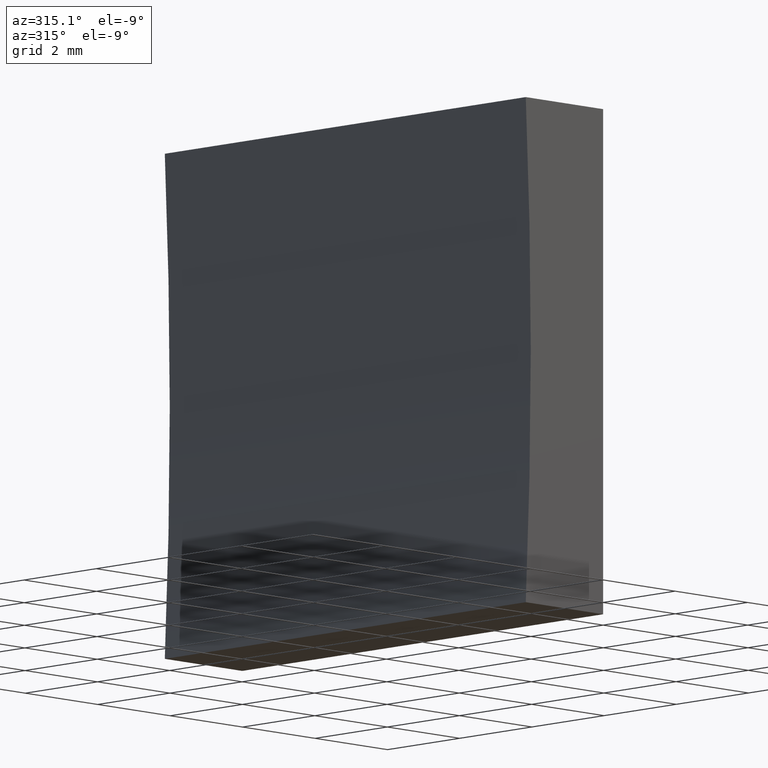
[diagram: clean part render]
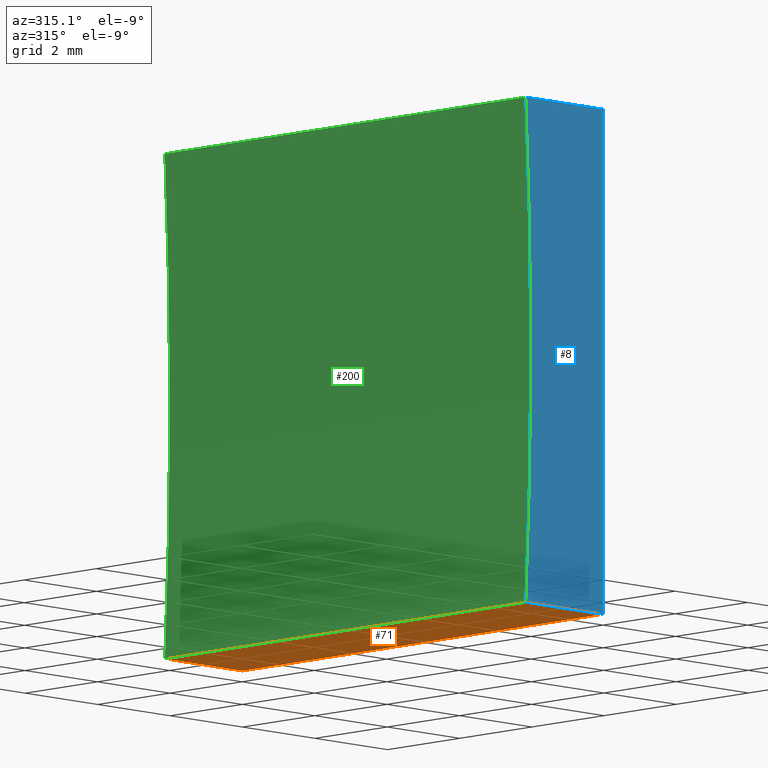
[diagram: same view with three faces highlighted in distinct colors, each labeled with its STEP entity id]
A machine part, auxiliary view with three faces highlighted in distinct colors.
Their STEP definitions:

[orange] entity #71 — the highlighted planar face has unit normal (0, -0, 1).
#1 = VECTOR ( 'NONE', #199, 1000.000000000000000 ) ;
#3 = VECTOR ( 'NONE', #110, 1000.000000000000000 ) ;
#11 = EDGE_LOOP ( 'NONE', ( #20, #53, #102, #25 ) ) ;
#19 = CARTESIAN_POINT ( 'NONE',  ( 0.0000000000000000000, 10.00000000000000000, 0.0000000000000000000 ) ) ;
#20 = ORIENTED_EDGE ( 'NONE', *, *, #38, .T. ) ;
#25 = ORIENTED_EDGE ( 'NONE', *, *, #194, .T. ) ;
#32 = LINE ( 'NONE', #19, #70 ) ;
#38 = EDGE_CURVE ( 'NONE', #196, #166, #90, .T. ) ;
#43 = CARTESIAN_POINT ( 'NONE',  ( 0.0000000000000000000, 10.00000000000000000, 0.0000000000000000000 ) ) ;
#44 = LINE ( 'NONE', #170, #151 ) ;
#52 = VERTEX_POINT ( 'NONE', #183 ) ;
#53 = ORIENTED_EDGE ( 'NONE', *, *, #124, .F. ) ;
#55 = EDGE_CURVE ( 'NONE', #138, #52, #131, .T. ) ;
#56 = CARTESIAN_POINT ( 'NONE',  ( 0.0000000000000000000, 10.00000000000000000, 0.0000000000000000000 ) ) ;
#70 = VECTOR ( 'NONE', #86, 1000.000000000000000 ) ;
#71 = ADVANCED_FACE ( 'NONE', ( #167 ), #117, .F. ) ;
#81 = CARTESIAN_POINT ( 'NONE',  ( 0.0000000000000000000, 0.0000000000000000000, 0.0000000000000000000 ) ) ;
#86 = DIRECTION ( 'NONE',  ( -0.0000000000000000000, -1.000000000000000000, -0.0000000000000000000 ) ) ;
#90 = LINE ( 'NONE', #158, #3 ) ;
#98 = DIRECTION ( 'NONE',  ( 8.119784972569431900E-016, -0.0000000000000000000, 1.000000000000000000 ) ) ;
#102 = ORIENTED_EDGE ( 'NONE', *, *, #55, .F. ) ;
#109 = DIRECTION ( 'NONE',  ( 1.000000000000000000, 0.0000000000000000000, -8.119784972569431900E-016 ) ) ;
#110 = DIRECTION ( 'NONE',  ( -1.000000000000000000, 0.0000000000000000000, 8.119784972569430900E-016 ) ) ;
#117 = PLANE ( 'NONE',  #201 ) ;
#124 = EDGE_CURVE ( 'NONE', #52, #166, #44, .T. ) ;
#131 = LINE ( 'NONE', #56, #1 ) ;
#138 = VERTEX_POINT ( 'NONE', #43 ) ;
#146 = CARTESIAN_POINT ( 'NONE',  ( -2.136415535432423200, 0.0000000000000000000, -7.806255641895631900E-015 ) ) ;
#151 = VECTOR ( 'NONE', #169, 1000.000000000000000 ) ;
#158 = CARTESIAN_POINT ( 'NONE',  ( 0.0000000000000000000, 0.0000000000000000000, 0.0000000000000000000 ) ) ;
#166 = VERTEX_POINT ( 'NONE', #146 ) ;
#167 = FACE_OUTER_BOUND ( 'NONE', #11, .T. ) ;
#168 = CARTESIAN_POINT ( 'NONE',  ( 0.0000000000000000000, 10.00000000000000000, 0.0000000000000000000 ) ) ;
#169 = DIRECTION ( 'NONE',  ( -0.0000000000000000000, -1.000000000000000000, -0.0000000000000000000 ) ) ;
#170 = CARTESIAN_POINT ( 'NONE',  ( -2.136415535432423200, 10.00000000000000000, -7.806255641895631900E-015 ) ) ;
#183 = CARTESIAN_POINT ( 'NONE',  ( -2.136415535432423200, 10.00000000000000000, -7.806255641895631900E-015 ) ) ;
#194 = EDGE_CURVE ( 'NONE', #138, #196, #32, .T. ) ;
#196 = VERTEX_POINT ( 'NONE', #81 ) ;
#199 = DIRECTION ( 'NONE',  ( -1.000000000000000000, 0.0000000000000000000, 8.119784972569430900E-016 ) ) ;
#201 = AXIS2_PLACEMENT_3D ( 'NONE', #168, #98, #109 ) ;

[blue] entity #8 — the highlighted planar face has unit normal (0, 1, 0).
#3 = VECTOR ( 'NONE', #110, 1000.000000000000000 ) ;
#8 = ADVANCED_FACE ( 'NONE', ( #88 ), #54, .F. ) ;
#10 = DIRECTION ( 'NONE',  ( -0.0000000000000000000, -1.000000000000000000, -0.0000000000000000000 ) ) ;
#14 = DIRECTION ( 'NONE',  ( -6.123233995736766000E-017, -0.0000000000000000000, -1.000000000000000000 ) ) ;
#15 = EDGE_CURVE ( 'NONE', #166, #125, #74, .T. ) ;
#27 = VECTOR ( 'NONE', #14, 1000.000000000000000 ) ;
#31 = VERTEX_POINT ( 'NONE', #156 ) ;
#38 = EDGE_CURVE ( 'NONE', #196, #166, #90, .T. ) ;
#39 = CARTESIAN_POINT ( 'NONE',  ( 6.123233995736766300E-016, 0.0000000000000000000, 10.00000000000000000 ) ) ;
#40 = ORIENTED_EDGE ( 'NONE', *, *, #38, .F. ) ;
#50 = CARTESIAN_POINT ( 'NONE',  ( -93.70000000000000300, 0.0000000000000000000, 5.000000000000010700 ) ) ;
#54 = PLANE ( 'NONE',  #116 ) ;
#62 = LINE ( 'NONE', #107, #27 ) ;
#66 = DIRECTION ( 'NONE',  ( 0.0000000000000000000, 0.0000000000000000000, 1.000000000000000000 ) ) ;
#74 = CIRCLE ( 'NONE', #97, 91.70000000000001700 ) ;
#81 = CARTESIAN_POINT ( 'NONE',  ( 0.0000000000000000000, 0.0000000000000000000, 0.0000000000000000000 ) ) ;
#82 = ORIENTED_EDGE ( 'NONE', *, *, #155, .F. ) ;
#88 = FACE_OUTER_BOUND ( 'NONE', #106, .T. ) ;
#90 = LINE ( 'NONE', #158, #3 ) ;
#95 = DIRECTION ( 'NONE',  ( 0.0000000000000000000, -0.0000000000000000000, 1.000000000000000000 ) ) ;
#97 = AXIS2_PLACEMENT_3D ( 'NONE', #50, #10, #66 ) ;
#106 = EDGE_LOOP ( 'NONE', ( #40, #82, #188, #144 ) ) ;
#107 = CARTESIAN_POINT ( 'NONE',  ( 0.0000000000000000000, 0.0000000000000000000, 0.0000000000000000000 ) ) ;
#110 = DIRECTION ( 'NONE',  ( -1.000000000000000000, 0.0000000000000000000, 8.119784972569430900E-016 ) ) ;
#113 = VECTOR ( 'NONE', #119, 1000.000000000000000 ) ;
#116 = AXIS2_PLACEMENT_3D ( 'NONE', #184, #195, #95 ) ;
#118 = LINE ( 'NONE', #39, #113 ) ;
#119 = DIRECTION ( 'NONE',  ( 1.000000000000000000, -0.0000000000000000000, 8.119784972569433800E-016 ) ) ;
#125 = VERTEX_POINT ( 'NONE', #174 ) ;
#144 = ORIENTED_EDGE ( 'NONE', *, *, #15, .F. ) ;
#146 = CARTESIAN_POINT ( 'NONE',  ( -2.136415535432423200, 0.0000000000000000000, -7.806255641895631900E-015 ) ) ;
#155 = EDGE_CURVE ( 'NONE', #31, #196, #62, .T. ) ;
#156 = CARTESIAN_POINT ( 'NONE',  ( 6.123233995736766300E-016, 0.0000000000000000000, 10.00000000000000000 ) ) ;
#158 = CARTESIAN_POINT ( 'NONE',  ( 0.0000000000000000000, 0.0000000000000000000, 0.0000000000000000000 ) ) ;
#166 = VERTEX_POINT ( 'NONE', #146 ) ;
#174 = CARTESIAN_POINT ( 'NONE',  ( -2.136415535432422800, 0.0000000000000000000, 9.999999999999998200 ) ) ;
#184 = CARTESIAN_POINT ( 'NONE',  ( -93.70000000000000300, 0.0000000000000000000, 5.000000000000010700 ) ) ;
#188 = ORIENTED_EDGE ( 'NONE', *, *, #189, .F. ) ;
#189 = EDGE_CURVE ( 'NONE', #125, #31, #118, .T. ) ;
#195 = DIRECTION ( 'NONE',  ( 0.0000000000000000000, 1.000000000000000000, 0.0000000000000000000 ) ) ;
#196 = VERTEX_POINT ( 'NONE', #81 ) ;

[green] entity #200 — the highlighted cylindrical surface (partial cylindrical patch) has radius 91.7 mm, axis along (-0, -1, -0).
#5 = DIRECTION ( 'NONE',  ( -0.0000000000000000000, -1.000000000000000000, -0.0000000000000000000 ) ) ;
#10 = DIRECTION ( 'NONE',  ( -0.0000000000000000000, -1.000000000000000000, -0.0000000000000000000 ) ) ;
#13 = VECTOR ( 'NONE', #5, 1000.000000000000000 ) ;
#15 = EDGE_CURVE ( 'NONE', #166, #125, #74, .T. ) ;
#18 = EDGE_LOOP ( 'NONE', ( #69, #122, #41, #141 ) ) ;
#29 = AXIS2_PLACEMENT_3D ( 'NONE', #145, #85, #192 ) ;
#33 = EDGE_CURVE ( 'NONE', #52, #114, #202, .T. ) ;
#36 = CYLINDRICAL_SURFACE ( 'NONE', #29, 91.70000000000001700 ) ;
#41 = ORIENTED_EDGE ( 'NONE', *, *, #33, .F. ) ;
#44 = LINE ( 'NONE', #170, #151 ) ;
#50 = CARTESIAN_POINT ( 'NONE',  ( -93.70000000000000300, 0.0000000000000000000, 5.000000000000010700 ) ) ;
#52 = VERTEX_POINT ( 'NONE', #183 ) ;
#59 = DIRECTION ( 'NONE',  ( -0.0000000000000000000, -1.000000000000000000, -0.0000000000000000000 ) ) ;
#66 = DIRECTION ( 'NONE',  ( 0.0000000000000000000, 0.0000000000000000000, 1.000000000000000000 ) ) ;
#68 = LINE ( 'NONE', #129, #13 ) ;
#69 = ORIENTED_EDGE ( 'NONE', *, *, #15, .T. ) ;
#74 = CIRCLE ( 'NONE', #97, 91.70000000000001700 ) ;
#77 = EDGE_CURVE ( 'NONE', #114, #125, #68, .T. ) ;
#79 = CARTESIAN_POINT ( 'NONE',  ( -2.136415535432422800, 10.00000000000000000, 9.999999999999998200 ) ) ;
#85 = DIRECTION ( 'NONE',  ( -0.0000000000000000000, -1.000000000000000000, -0.0000000000000000000 ) ) ;
#97 = AXIS2_PLACEMENT_3D ( 'NONE', #50, #10, #66 ) ;
#114 = VERTEX_POINT ( 'NONE', #79 ) ;
#122 = ORIENTED_EDGE ( 'NONE', *, *, #77, .F. ) ;
#124 = EDGE_CURVE ( 'NONE', #52, #166, #44, .T. ) ;
#125 = VERTEX_POINT ( 'NONE', #174 ) ;
#129 = CARTESIAN_POINT ( 'NONE',  ( -2.136415535432422800, 10.00000000000000000, 9.999999999999998200 ) ) ;
#141 = ORIENTED_EDGE ( 'NONE', *, *, #124, .T. ) ;
#143 = CARTESIAN_POINT ( 'NONE',  ( -93.70000000000000300, 10.00000000000000000, 5.000000000000010700 ) ) ;
#145 = CARTESIAN_POINT ( 'NONE',  ( -93.70000000000000300, 10.00000000000000000, 5.000000000000010700 ) ) ;
#146 = CARTESIAN_POINT ( 'NONE',  ( -2.136415535432423200, 0.0000000000000000000, -7.806255641895631900E-015 ) ) ;
#151 = VECTOR ( 'NONE', #169, 1000.000000000000000 ) ;
#166 = VERTEX_POINT ( 'NONE', #146 ) ;
#169 = DIRECTION ( 'NONE',  ( -0.0000000000000000000, -1.000000000000000000, -0.0000000000000000000 ) ) ;
#170 = CARTESIAN_POINT ( 'NONE',  ( -2.136415535432423200, 10.00000000000000000, -7.806255641895631900E-015 ) ) ;
#171 = AXIS2_PLACEMENT_3D ( 'NONE', #143, #59, #186 ) ;
#174 = CARTESIAN_POINT ( 'NONE',  ( -2.136415535432422800, 0.0000000000000000000, 9.999999999999998200 ) ) ;
#183 = CARTESIAN_POINT ( 'NONE',  ( -2.136415535432423200, 10.00000000000000000, -7.806255641895631900E-015 ) ) ;
#186 = DIRECTION ( 'NONE',  ( 0.0000000000000000000, 0.0000000000000000000, 1.000000000000000000 ) ) ;
#191 = FACE_OUTER_BOUND ( 'NONE', #18, .T. ) ;
#192 = DIRECTION ( 'NONE',  ( 0.0000000000000000000, 0.0000000000000000000, -1.000000000000000000 ) ) ;
#200 = ADVANCED_FACE ( 'NONE', ( #191 ), #36, .F. ) ;
#202 = CIRCLE ( 'NONE', #171, 91.70000000000001700 ) ;